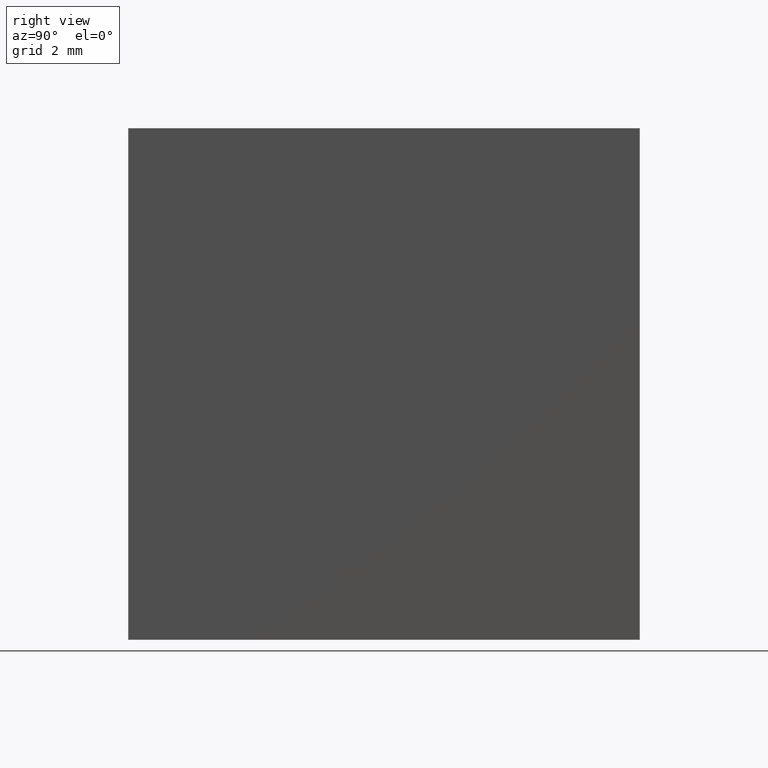
[diagram: clean part render]
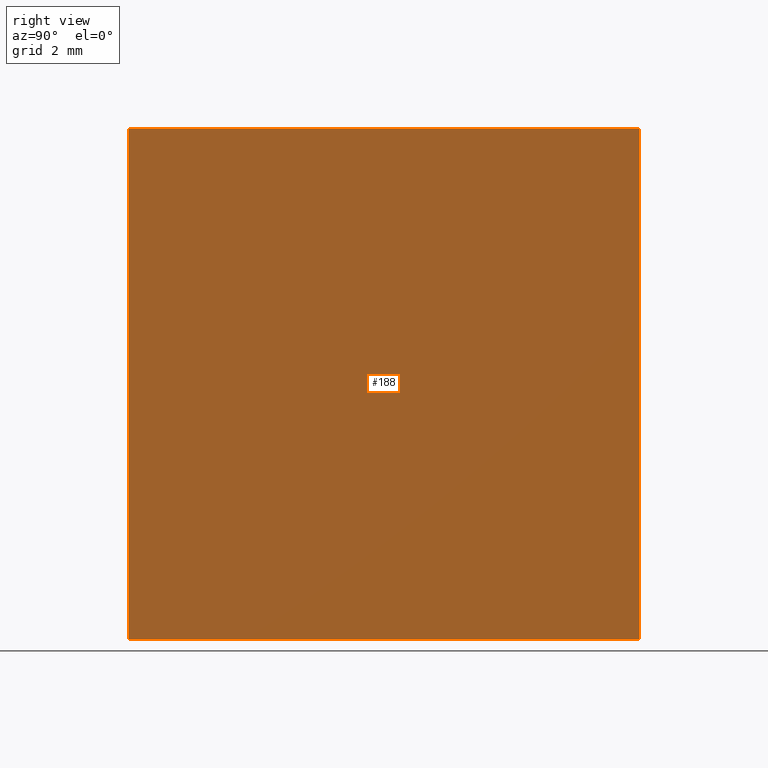
[diagram: same view with one face highlighted and labeled with its STEP entity id]
A machine part, right view. The second image highlights one B-rep face of the part: STEP entity #188.
In plain terms, the highlighted planar face has unit normal (-1, 0, 0).
Its self-contained STEP definition (entity closure, byte-faithful):
#1 = EDGE_LOOP ( 'NONE', ( #88, #16, #125, #121 ) ) ;
#5 = VECTOR ( 'NONE', #111, 1000.000000000000000 ) ;
#16 = ORIENTED_EDGE ( 'NONE', *, *, #168, .F. ) ;
#18 = EDGE_CURVE ( 'NONE', #183, #48, #190, .T. ) ;
#31 = VECTOR ( 'NONE', #61, 1000.000000000000000 ) ;
#38 = DIRECTION ( 'NONE',  ( 0.0000000000000000000, 0.0000000000000000000, 1.000000000000000000 ) ) ;
#41 = CARTESIAN_POINT ( 'NONE',  ( -108.1547956651487400, 10.00000000000000000, -4.999999999999987600 ) ) ;
#42 = AXIS2_PLACEMENT_3D ( 'NONE', #80, #167, #38 ) ;
#48 = VERTEX_POINT ( 'NONE', #132 ) ;
#54 = DIRECTION ( 'NONE',  ( -0.0000000000000000000, -0.0000000000000000000, -1.000000000000000000 ) ) ;
#56 = VERTEX_POINT ( 'NONE', #120 ) ;
#61 = DIRECTION ( 'NONE',  ( -0.0000000000000000000, -1.000000000000000000, -0.0000000000000000000 ) ) ;
#75 = DIRECTION ( 'NONE',  ( -0.0000000000000000000, -0.0000000000000000000, -1.000000000000000000 ) ) ;
#77 = CARTESIAN_POINT ( 'NONE',  ( -108.1547956651487400, 0.0000000000000000000, -4.999999999999987600 ) ) ;
#80 = CARTESIAN_POINT ( 'NONE',  ( -108.1547956651487400, 10.00000000000000000, -4.999999999999987600 ) ) ;
#81 = CARTESIAN_POINT ( 'NONE',  ( -108.1547956651487400, 10.00000000000000000, 5.000000000000000000 ) ) ;
#84 = EDGE_CURVE ( 'NONE', #119, #183, #123, .T. ) ;
#88 = ORIENTED_EDGE ( 'NONE', *, *, #18, .T. ) ;
#98 = LINE ( 'NONE', #41, #31 ) ;
#102 = EDGE_CURVE ( 'NONE', #119, #56, #143, .T. ) ;
#111 = DIRECTION ( 'NONE',  ( -0.0000000000000000000, -1.000000000000000000, -0.0000000000000000000 ) ) ;
#119 = VERTEX_POINT ( 'NONE', #81 ) ;
#120 = CARTESIAN_POINT ( 'NONE',  ( -108.1547956651487400, 10.00000000000000000, -4.999999999999987600 ) ) ;
#121 = ORIENTED_EDGE ( 'NONE', *, *, #84, .T. ) ;
#123 = LINE ( 'NONE', #127, #5 ) ;
#125 = ORIENTED_EDGE ( 'NONE', *, *, #102, .F. ) ;
#127 = CARTESIAN_POINT ( 'NONE',  ( -108.1547956651487400, 10.00000000000000000, 5.000000000000000000 ) ) ;
#132 = CARTESIAN_POINT ( 'NONE',  ( -108.1547956651487400, 0.0000000000000000000, -4.999999999999987600 ) ) ;
#143 = LINE ( 'NONE', #174, #200 ) ;
#148 = VECTOR ( 'NONE', #75, 1000.000000000000000 ) ;
#159 = FACE_OUTER_BOUND ( 'NONE', #1, .T. ) ;
#167 = DIRECTION ( 'NONE',  ( -1.000000000000000000, 0.0000000000000000000, 0.0000000000000000000 ) ) ;
#168 = EDGE_CURVE ( 'NONE', #56, #48, #98, .T. ) ;
#170 = PLANE ( 'NONE',  #42 ) ;
#174 = CARTESIAN_POINT ( 'NONE',  ( -108.1547956651487400, 10.00000000000000000, -4.999999999999987600 ) ) ;
#183 = VERTEX_POINT ( 'NONE', #202 ) ;
#188 = ADVANCED_FACE ( 'NONE', ( #159 ), #170, .F. ) ;
#190 = LINE ( 'NONE', #77, #148 ) ;
#200 = VECTOR ( 'NONE', #54, 1000.000000000000000 ) ;
#202 = CARTESIAN_POINT ( 'NONE',  ( -108.1547956651487400, 0.0000000000000000000, 5.000000000000000000 ) ) ;